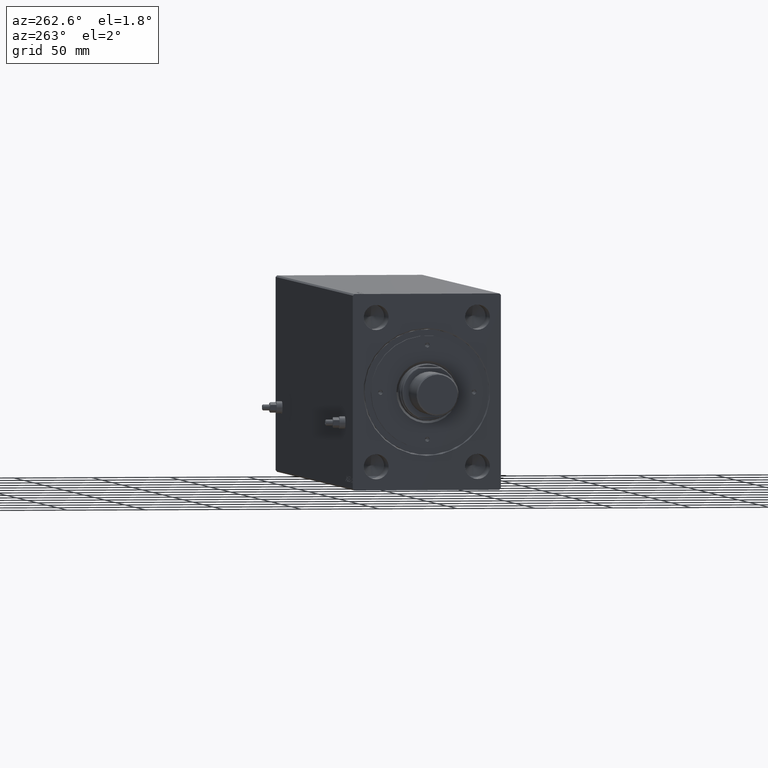
[diagram: clean part render]
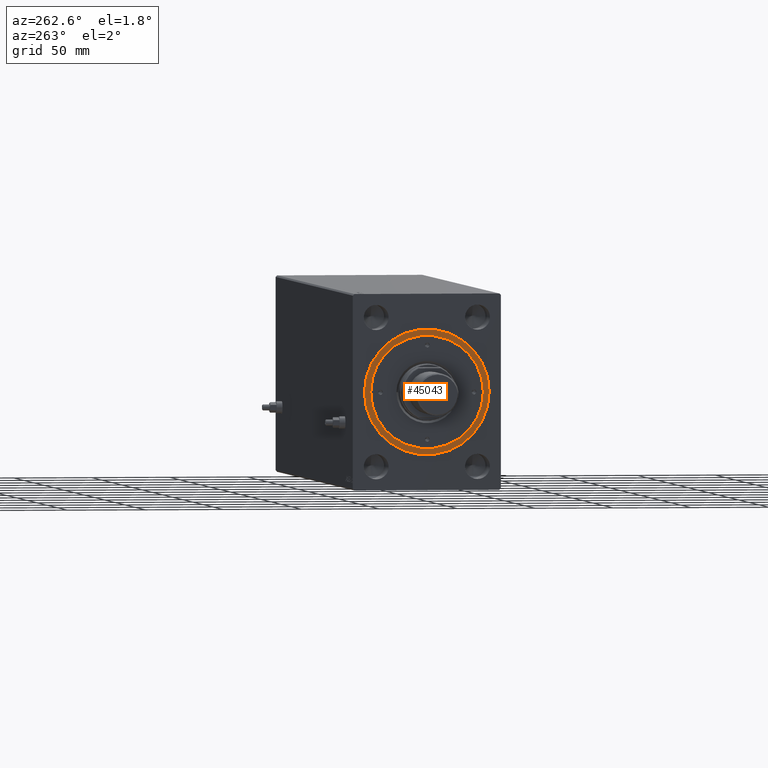
[diagram: same view with one face highlighted and labeled with its STEP entity id]
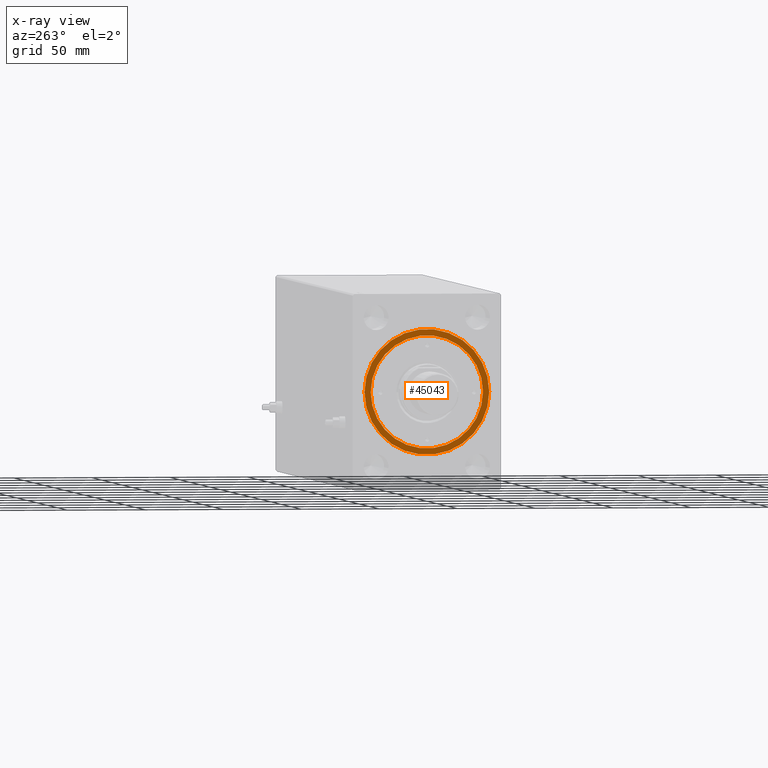
[diagram: x-ray of the same camera — body ghosted, the highlighted face saturated]
A machine part, auxiliary view. The second image highlights one B-rep face of the part: STEP entity #45043.
The next image is the same camera in x-ray: the body ghosted, the highlighted face saturated — about 0% of this face is hidden behind the body in this view.
In plain terms, the highlighted planar face has unit normal (-1, 0, 0).
Its self-contained STEP definition (entity closure, byte-faithful):
#123 = DIRECTION ( 'NONE',  ( 0.000000000000000000, 0.000000000000000000, 1.000000000000000000 ) ) ;
#2334 = CARTESIAN_POINT ( 'NONE',  ( 0.000000000000000000, 0.000000000000000000, 12.19999999999999929 ) ) ;
#4030 = ORIENTED_EDGE ( 'NONE', *, *, #25385, .T. ) ;
#5097 = DIRECTION ( 'NONE',  ( 1.000000000000000000, 0.000000000000000000, 0.000000000000000000 ) ) ;
#5124 = AXIS2_PLACEMENT_3D ( 'NONE', #31513, #123, #31056 ) ;
#6340 = DIRECTION ( 'NONE',  ( 0.000000000000000000, 0.000000000000000000, 1.000000000000000000 ) ) ;
#6573 = FACE_OUTER_BOUND ( 'NONE', #28559, .T. ) ;
#7447 = AXIS2_PLACEMENT_3D ( 'NONE', #15013, #17786, #42092 ) ;
#10128 = DIRECTION ( 'NONE',  ( 1.000000000000000000, 0.000000000000000000, 0.000000000000000000 ) ) ;
#11830 = AXIS2_PLACEMENT_3D ( 'NONE', #24211, #6340, #13233 ) ;
#13233 = DIRECTION ( 'NONE',  ( 1.000000000000000000, 0.000000000000000000, -0.000000000000000000 ) ) ;
#13744 = VERTEX_POINT ( 'NONE', #43087 ) ;
#14260 = EDGE_CURVE ( 'NONE', #13744, #14918, #28485, .T. ) ;
#14918 = VERTEX_POINT ( 'NONE', #28382 ) ;
#15013 = CARTESIAN_POINT ( 'NONE',  ( 0.000000000000000000, 0.000000000000000000, 12.19999999999999929 ) ) ;
#17786 = DIRECTION ( 'NONE',  ( 0.000000000000000000, 0.000000000000000000, 1.000000000000000000 ) ) ;
#18947 = AXIS2_PLACEMENT_3D ( 'NONE', #2334, #25946, #5097 ) ;
#19782 = EDGE_CURVE ( 'NONE', #14918, #13744, #42454, .T. ) ;
#24211 = CARTESIAN_POINT ( 'NONE',  ( 0.000000000000000000, 0.000000000000000000, 12.19999999999999929 ) ) ;
#25385 = EDGE_CURVE ( 'NONE', #34714, #33807, #44257, .T. ) ;
#25603 = CARTESIAN_POINT ( 'NONE',  ( -40.00000000000000000, 0.000000000000000000, 12.19999999999999929 ) ) ;
#25946 = DIRECTION ( 'NONE',  ( 0.000000000000000000, 0.000000000000000000, 1.000000000000000000 ) ) ;
#26167 = EDGE_LOOP ( 'NONE', ( #28961, #30738 ) ) ;
#27658 = PLANE ( 'NONE',  #11830 ) ;
#28382 = CARTESIAN_POINT ( 'NONE',  ( 36.00000000000000000, 4.408728476930470856E-15, 12.19999999999999929 ) ) ;
#28485 = CIRCLE ( 'NONE', #18947, 36.00000000000000000 ) ;
#28559 = EDGE_LOOP ( 'NONE', ( #4030, #41213 ) ) ;
#28961 = ORIENTED_EDGE ( 'NONE', *, *, #14260, .F. ) ;
#30738 = ORIENTED_EDGE ( 'NONE', *, *, #19782, .F. ) ;
#30984 = DIRECTION ( 'NONE',  ( 0.000000000000000000, 0.000000000000000000, 1.000000000000000000 ) ) ;
#31056 = DIRECTION ( 'NONE',  ( 1.000000000000000000, 0.000000000000000000, 0.000000000000000000 ) ) ;
#31513 = CARTESIAN_POINT ( 'NONE',  ( 0.000000000000000000, 0.000000000000000000, 12.19999999999999929 ) ) ;
#33807 = VERTEX_POINT ( 'NONE', #41108 ) ;
#34714 = VERTEX_POINT ( 'NONE', #25603 ) ;
#34987 = FACE_BOUND ( 'NONE', #26167, .T. ) ;
#37433 = CIRCLE ( 'NONE', #7447, 40.00000000000000000 ) ;
#41108 = CARTESIAN_POINT ( 'NONE',  ( 40.00000000000000000, 4.898587196589413026E-15, 12.19999999999999929 ) ) ;
#41213 = ORIENTED_EDGE ( 'NONE', *, *, #45100, .T. ) ;
#42092 = DIRECTION ( 'NONE',  ( 1.000000000000000000, 0.000000000000000000, 0.000000000000000000 ) ) ;
#42454 = CIRCLE ( 'NONE', #5124, 36.00000000000000000 ) ;
#42779 = AXIS2_PLACEMENT_3D ( 'NONE', #44067, #30984, #10128 ) ;
#43087 = CARTESIAN_POINT ( 'NONE',  ( -36.00000000000000000, 0.000000000000000000, 12.19999999999999929 ) ) ;
#44067 = CARTESIAN_POINT ( 'NONE',  ( 0.000000000000000000, 0.000000000000000000, 12.19999999999999929 ) ) ;
#44257 = CIRCLE ( 'NONE', #42779, 40.00000000000000000 ) ;
#45043 = ADVANCED_FACE ( 'NONE', ( #34987, #6573 ), #27658, .T. ) ;
#45100 = EDGE_CURVE ( 'NONE', #33807, #34714, #37433, .T. ) ;